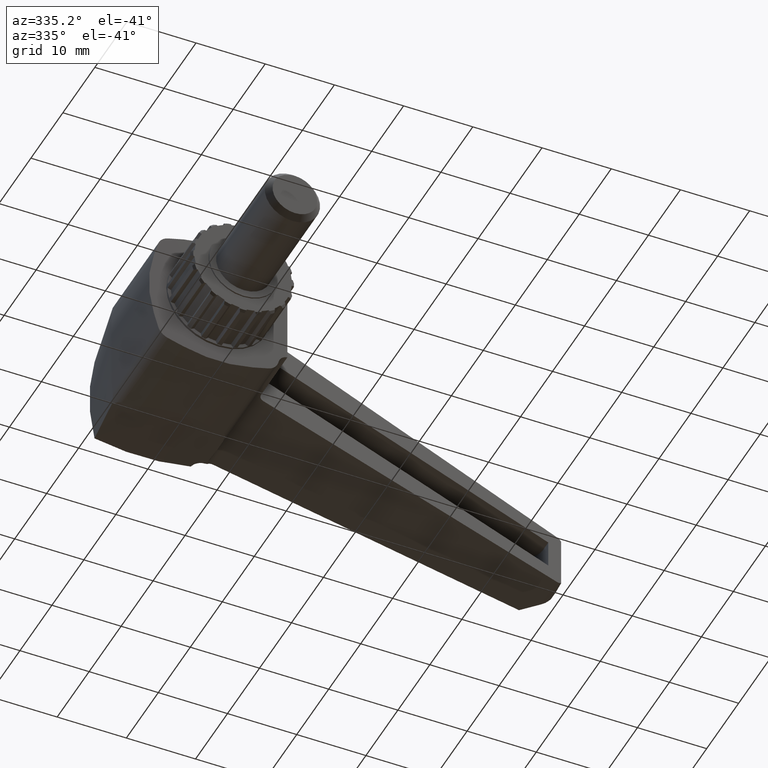
[diagram: clean part render]
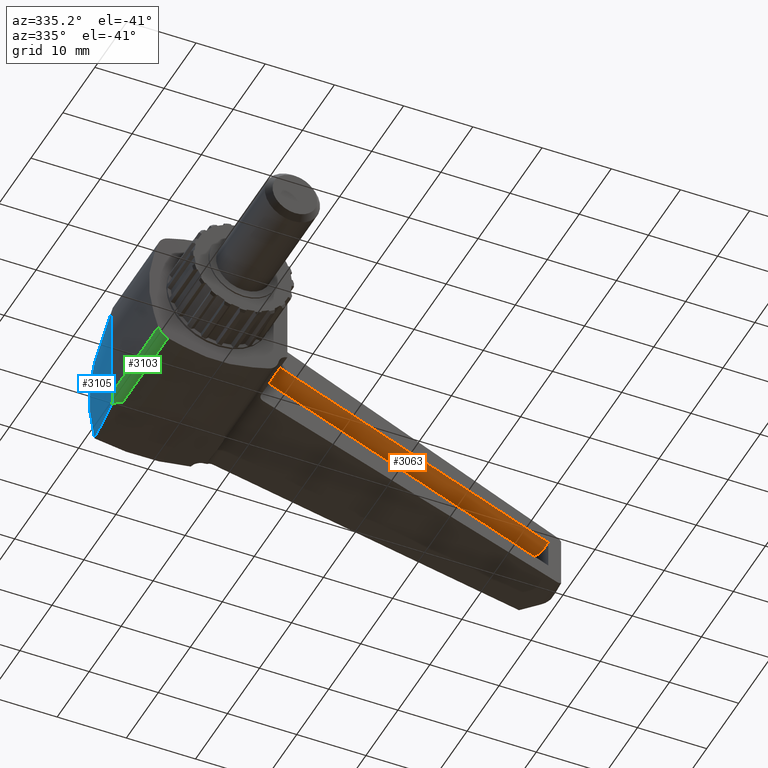
[diagram: same view with three faces highlighted in distinct colors, each labeled with its STEP entity id]
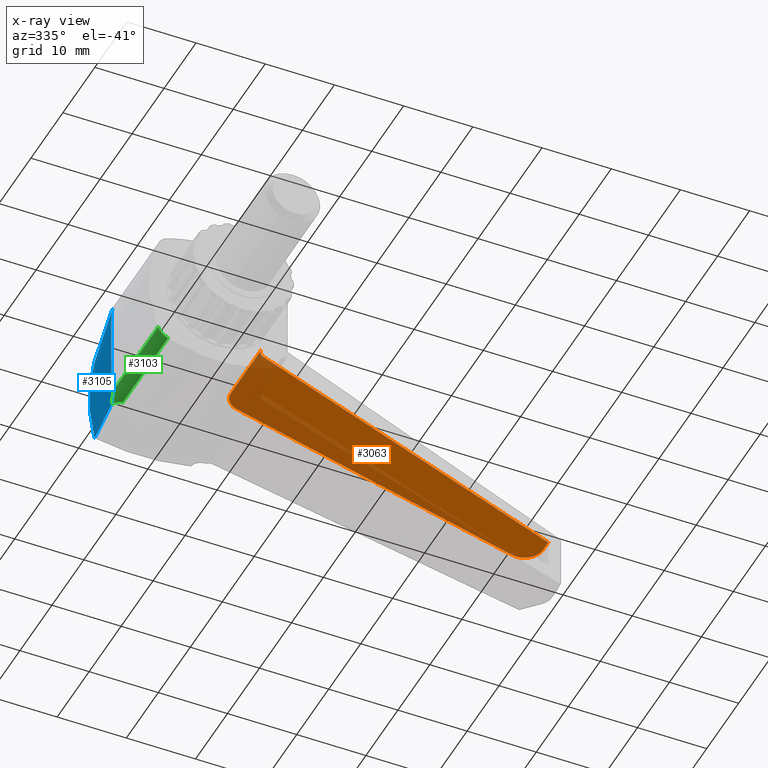
[diagram: x-ray of the same camera — body ghosted, the three highlighted faces saturated]
A machine part, auxiliary view with three faces highlighted in distinct colors.
The next image is the same camera in x-ray (body ghosted, the three faces saturated) — at least one of them is partly hidden behind the body in this view.
Their STEP definitions:

[orange] entity #3063 — the highlighted planar face has unit normal (0, 0, 1).
#391=LINE('',#5105,#632);
#392=LINE('',#5109,#633);
#393=LINE('',#5113,#634);
#394=LINE('',#5114,#635);
#632=VECTOR('',#4054,9.4853765730321);
#633=VECTOR('',#4057,46.3974669358459);
#634=VECTOR('',#4060,1.6841422785875);
#635=VECTOR('',#4061,52.7223013243301);
#778=FACE_OUTER_BOUND('',#952,.T.);
#952=EDGE_LOOP('',(#2384,#2385,#2386,#2387,#2388,#2389,#2390));
#1134=CIRCLE('',#3337,1.19999999999999);
#1135=CIRCLE('',#3338,2.66666666666666);
#1136=CIRCLE('',#3339,2.66666666666666);
#1418=VERTEX_POINT('',#5101);
#1419=VERTEX_POINT('',#5102);
#1420=VERTEX_POINT('',#5104);
#1421=VERTEX_POINT('',#5106);
#1422=VERTEX_POINT('',#5108);
#1423=VERTEX_POINT('',#5110);
#1424=VERTEX_POINT('',#5112);
#1817=EDGE_CURVE('',#1418,#1419,#1134,.T.);
#1818=EDGE_CURVE('',#1420,#1419,#391,.T.);
#1819=EDGE_CURVE('',#1421,#1420,#1135,.T.);
#1820=EDGE_CURVE('',#1422,#1421,#392,.T.);
#1821=EDGE_CURVE('',#1423,#1422,#1136,.T.);
#1822=EDGE_CURVE('',#1424,#1423,#393,.T.);
#1823=EDGE_CURVE('',#1418,#1424,#394,.T.);
#2384=ORIENTED_EDGE('',*,*,#1817,.T.);
#2385=ORIENTED_EDGE('',*,*,#1818,.F.);
#2386=ORIENTED_EDGE('',*,*,#1819,.F.);
#2387=ORIENTED_EDGE('',*,*,#1820,.F.);
#2388=ORIENTED_EDGE('',*,*,#1821,.F.);
#2389=ORIENTED_EDGE('',*,*,#1822,.F.);
#2390=ORIENTED_EDGE('',*,*,#1823,.F.);
#2918=PLANE('',#3336);
#3063=ADVANCED_FACE('',(#778),#2918,.F.);
#3336=AXIS2_PLACEMENT_3D('',#5100,#4050,#4051);
#3337=AXIS2_PLACEMENT_3D('',#5103,#4052,#4053);
#3338=AXIS2_PLACEMENT_3D('',#5107,#4055,#4056);
#3339=AXIS2_PLACEMENT_3D('',#5111,#4058,#4059);
#4050=DIRECTION('center_axis',(0.,0.,1.));
#4051=DIRECTION('ref_axis',(1.,0.,0.));
#4052=DIRECTION('center_axis',(0.,0.,1.));
#4053=DIRECTION('ref_axis',(1.,0.,0.));
#4054=DIRECTION('',(0.,-1.,0.));
#4055=DIRECTION('center_axis',(0.,0.,1.));
#4056=DIRECTION('ref_axis',(1.,0.,0.));
#4057=DIRECTION('',(-0.969837428026384,-0.243752668086258,0.));
#4058=DIRECTION('center_axis',(0.,0.,1.));
#4059=DIRECTION('ref_axis',(1.,0.,0.));
#4060=DIRECTION('',(0.,1.,0.));
#4061=DIRECTION('',(0.939692620785908,0.342020143325669,0.));
#5100=CARTESIAN_POINT('Origin',(57.6666666666667,37.0036134330854,2.));
#5101=CARTESIAN_POINT('',(10.7905758280092,17.2873820990914,2.));
#5102=CARTESIAN_POINT('',(10.002,16.2087305417334,2.));
#5103=CARTESIAN_POINT('Origin',(11.201,16.1597509541484,2.));
#5104=CARTESIAN_POINT('',(10.002,25.6941071147655,2.));
#5105=CARTESIAN_POINT('',(10.002,25.6941071147655,2.));
#5106=CARTESIAN_POINT('',(12.01865955177,28.2803402164327,2.));
#5107=CARTESIAN_POINT('Origin',(12.6686666666667,25.694107075029,2.));
#5108=CARTESIAN_POINT('',(57.01665955177,39.5898465744891,2.));
#5109=CARTESIAN_POINT('',(57.01665955177,39.5898465744891,2.));
#5110=CARTESIAN_POINT('',(60.3333333333333,37.0036134330854,2.));
#5111=CARTESIAN_POINT('Origin',(57.6666666666667,37.0036134330854,2.));
#5112=CARTESIAN_POINT('',(60.3333333333333,35.3194711544979,2.));
#5113=CARTESIAN_POINT('',(60.3333333333333,35.3194711544979,2.));
#5114=CARTESIAN_POINT('',(10.7905758280092,17.2873820990914,2.));

[blue] entity #3105 — the highlighted conical surface has half-angle 12 deg.
#35=B_SPLINE_CURVE_WITH_KNOTS('',3,(#5261,#5262,#5263,#5264),
 .UNSPECIFIED.,.F.,.F.,(4,4),(-2.26796566208621,-1.44446930168808),
 .UNSPECIFIED.);
#38=B_SPLINE_CURVE_WITH_KNOTS('',3,(#5313,#5314,#5315,#5316),
 .UNSPECIFIED.,.F.,.F.,(4,4),(-1.90518107225298,-1.08168540035583),
 .UNSPECIFIED.);
#45=B_SPLINE_CURVE_WITH_KNOTS('',3,(#5455,#5456,#5457,#5458,#5459,#5460,
#5461,#5462,#5463,#5464),.UNSPECIFIED.,.F.,.F.,(4,2,2,2,4),(-1.01407423824861,
-1.0078333576004,-0.989094278958702,-0.95161612167531,-0.84242204267243),
 .UNSPECIFIED.);
#46=B_SPLINE_CURVE_WITH_KNOTS('',3,(#5473,#5474,#5475,#5476,#5477,#5478,
#5479,#5480,#5481,#5482,#5483,#5484,#5485,#5486),.UNSPECIFIED.,.F.,.F.,
(4,2,2,2,2,2,4),(-3.65298499393777,-3.59109445330903,-3.35956152987034,
-3.12802860643165,-2.89649568299296,-2.66496275955427,-2.60307221892553),
 .UNSPECIFIED.);
#47=B_SPLINE_CURVE_WITH_KNOTS('',3,(#5491,#5492,#5493,#5494,#5495,#5496,
#5497,#5498,#5499,#5500),.UNSPECIFIED.,.F.,.F.,(4,2,2,2,4),(-1.21072282981158,
-1.10152875080888,-1.06405059352549,-1.04531151488379,-1.03907063423558),
 .UNSPECIFIED.);
#58=CONICAL_SURFACE('',#3425,33.999,12.);
#120=(
BOUNDED_CURVE()
B_SPLINE_CURVE(2,(#5469,#5470,#5471),.UNSPECIFIED.,.F.,.F.)
B_SPLINE_CURVE_WITH_KNOTS((3,3),(1.54168036904069,1.88503908409736),
 .UNSPECIFIED.)
CURVE()
GEOMETRIC_REPRESENTATION_ITEM()
RATIONAL_B_SPLINE_CURVE((1.04667868451785,1.04898350630629,1.04999957470635))
REPRESENTATION_ITEM('')
);
#121=(
BOUNDED_CURVE()
B_SPLINE_CURVE(2,(#5488,#5489,#5490),.UNSPECIFIED.,.F.,.F.)
B_SPLINE_CURVE_WITH_KNOTS((3,3),(2.4264552206484,2.76981393570507),
 .UNSPECIFIED.)
CURVE()
GEOMETRIC_REPRESENTATION_ITEM()
RATIONAL_B_SPLINE_CURVE((1.04999957470635,1.04898350630629,1.04667868451785))
REPRESENTATION_ITEM('')
);
#820=FACE_OUTER_BOUND('',#1001,.T.);
#1001=EDGE_LOOP('',(#2748,#2749,#2750,#2751,#2752,#2753,#2754,#2755));
#1161=CIRCLE('',#3378,30.3177878438847);
#1431=VERTEX_POINT('',#5169);
#1432=VERTEX_POINT('',#5171);
#1444=VERTEX_POINT('',#5250);
#1456=VERTEX_POINT('',#5312);
#1476=VERTEX_POINT('',#5454);
#1477=VERTEX_POINT('',#5468);
#1478=VERTEX_POINT('',#5472);
#1479=VERTEX_POINT('',#5487);
#1856=EDGE_CURVE('',#1431,#1432,#1161,.T.);
#1869=EDGE_CURVE('',#1431,#1444,#35,.T.);
#1886=EDGE_CURVE('',#1456,#1432,#38,.T.);
#1930=EDGE_CURVE('',#1476,#1444,#45,.T.);
#1932=EDGE_CURVE('',#1477,#1476,#120,.T.);
#1933=EDGE_CURVE('',#1478,#1477,#46,.T.);
#1934=EDGE_CURVE('',#1479,#1478,#121,.T.);
#1935=EDGE_CURVE('',#1456,#1479,#47,.T.);
#2748=ORIENTED_EDGE('',*,*,#1856,.F.);
#2749=ORIENTED_EDGE('',*,*,#1869,.T.);
#2750=ORIENTED_EDGE('',*,*,#1930,.F.);
#2751=ORIENTED_EDGE('',*,*,#1932,.F.);
#2752=ORIENTED_EDGE('',*,*,#1933,.F.);
#2753=ORIENTED_EDGE('',*,*,#1934,.F.);
#2754=ORIENTED_EDGE('',*,*,#1935,.F.);
#2755=ORIENTED_EDGE('',*,*,#1886,.T.);
#3105=ADVANCED_FACE('',(#820),#58,.T.);
#3378=AXIS2_PLACEMENT_3D('',#5172,#4145,#4146);
#3425=AXIS2_PLACEMENT_3D('',#5467,#4273,#4274);
#4145=DIRECTION('center_axis',(0.,1.,0.));
#4146=DIRECTION('ref_axis',(-1.,0.,0.));
#4273=DIRECTION('center_axis',(0.,-1.,0.));
#4274=DIRECTION('ref_axis',(1.,0.,0.));
#5169=CARTESIAN_POINT('',(-6.59453735489223,32.4141114395597,-6.58267563356202));
#5171=CARTESIAN_POINT('',(-6.59453735489223,32.4141114395597,6.58267563356201));
#5172=CARTESIAN_POINT('Origin',(23.,32.4141114395597,0.));
#5250=CARTESIAN_POINT('',(-8.13800979101938,23.6497522696908,-8.1254191001912));
#5261=CARTESIAN_POINT('Ctrl Pts',(-6.59453735489223,32.4141114395597,-6.58267563356205));
#5262=CARTESIAN_POINT('Ctrl Pts',(-7.11018896440254,29.5195514012369,-7.09808649004786));
#5263=CARTESIAN_POINT('Ctrl Pts',(-7.62808300466324,26.5764846099896,-7.61573574276851));
#5264=CARTESIAN_POINT('Ctrl Pts',(-8.13800979101937,23.6497522696908,-8.12541910019122));
#5312=CARTESIAN_POINT('',(-8.13800979101975,23.6497522696887,8.12541910019155));
#5313=CARTESIAN_POINT('Ctrl Pts',(-8.13800979101975,23.6497522696887,8.12541910019154));
#5314=CARTESIAN_POINT('Ctrl Pts',(-7.62808473143791,26.5764746991409,7.61573746871879));
#5315=CARTESIAN_POINT('Ctrl Pts',(-7.1101904586519,29.5195430134139,7.0980879835995));
#5316=CARTESIAN_POINT('Ctrl Pts',(-6.59453735489224,32.4141114395597,6.58267563356199));
#5454=CARTESIAN_POINT('',(-8.65737632033215,22.266400516384,-7.24016140570836));
#5455=CARTESIAN_POINT('Ctrl Pts',(-8.65737632033215,22.2664005163841,-7.24016140570834));
#5456=CARTESIAN_POINT('Ctrl Pts',(-8.6519035175192,22.2715406787458,-7.25919046629446));
#5457=CARTESIAN_POINT('Ctrl Pts',(-8.64623220621372,22.2778624370829,-7.27787981825127));
#5458=CARTESIAN_POINT('Ctrl Pts',(-8.62286425685562,22.3074214748676,-7.35125519654425));
#5459=CARTESIAN_POINT('Ctrl Pts',(-8.60381918587381,22.3392491793408,-7.40305346321063));
#5460=CARTESIAN_POINT('Ctrl Pts',(-8.5447400114409,22.4536348361287,-7.54758866384498));
#5461=CARTESIAN_POINT('Ctrl Pts',(-8.50271978486236,22.5551945504649,-7.62956514446385));
#5462=CARTESIAN_POINT('Ctrl Pts',(-8.35462581318088,22.9425630033874,-7.88849439366135));
#5463=CARTESIAN_POINT('Ctrl Pts',(-8.24567991329105,23.2886220719108,-8.01681880142869));
#5464=CARTESIAN_POINT('Ctrl Pts',(-8.13800979101938,23.6497522696908,-8.12541910019119));
#5467=CARTESIAN_POINT('Origin',(23.,15.0953698905215,0.));
#5468=CARTESIAN_POINT('',(-9.28915109717476,21.2976510486606,-5.04346605303281));
#5469=CARTESIAN_POINT('Ctrl Pts',(-9.28915109715843,21.2976510486953,-5.04346605308962));
#5470=CARTESIAN_POINT('Ctrl Pts',(-8.97226539335509,21.9706506023803,-6.14528489484994));
#5471=CARTESIAN_POINT('Ctrl Pts',(-8.65737632033215,22.266400516384,-7.24016140570839));
#5472=CARTESIAN_POINT('',(-9.28915109717476,21.2976510486607,5.04346605303279));
#5473=CARTESIAN_POINT('Ctrl Pts',(-9.28915109717477,21.2976510486606,5.04346605303288));
#5474=CARTESIAN_POINT('Ctrl Pts',(-9.34100477500819,21.1875245847006,4.8631696289099));
#5475=CARTESIAN_POINT('Ctrl Pts',(-9.3907089780112,21.0820816027187,4.67987067656354));
#5476=CARTESIAN_POINT('Ctrl Pts',(-9.61482888820569,20.6070730658071,3.79786834722391));
#5477=CARTESIAN_POINT('Ctrl Pts',(-9.75745732877799,20.3061287385096,3.06172084799632));
#5478=CARTESIAN_POINT('Ctrl Pts',(-9.95014259873188,19.9000600944279,1.54873581925546));
#5479=CARTESIAN_POINT('Ctrl Pts',(-10.,19.7952953698904,0.771776411462294));
#5480=CARTESIAN_POINT('Ctrl Pts',(-10.,19.7952953698904,-0.771776411462303));
#5481=CARTESIAN_POINT('Ctrl Pts',(-9.95014259873188,19.9000600944278,-1.54873581925547));
#5482=CARTESIAN_POINT('Ctrl Pts',(-9.75745732877799,20.3061287385095,-3.06172084799633));
#5483=CARTESIAN_POINT('Ctrl Pts',(-9.61482888820569,20.6070730658071,-3.79786834722391));
#5484=CARTESIAN_POINT('Ctrl Pts',(-9.3907089780112,21.0820816027188,-4.67987067656353));
#5485=CARTESIAN_POINT('Ctrl Pts',(-9.3410047750082,21.1875245847006,-4.86316962890988));
#5486=CARTESIAN_POINT('Ctrl Pts',(-9.28915109717478,21.2976510486605,-5.04346605303286));
#5487=CARTESIAN_POINT('',(-8.65737632033215,22.2664005163841,7.24016140570836));
#5488=CARTESIAN_POINT('Ctrl Pts',(-8.65737632033214,22.266400516384,7.24016140570842));
#5489=CARTESIAN_POINT('Ctrl Pts',(-8.97226539335508,21.9706506023803,6.14528489484997));
#5490=CARTESIAN_POINT('Ctrl Pts',(-9.28915109715842,21.2976510486953,5.04346605308965));
#5491=CARTESIAN_POINT('Ctrl Pts',(-8.13800979101991,23.649752269689,8.12541910019066));
#5492=CARTESIAN_POINT('Ctrl Pts',(-8.24567991329141,23.2886220719096,8.01681880142825));
#5493=CARTESIAN_POINT('Ctrl Pts',(-8.35462581318106,22.9425630033869,7.88849439366104));
#5494=CARTESIAN_POINT('Ctrl Pts',(-8.50271978486236,22.5551945504649,7.62956514446386));
#5495=CARTESIAN_POINT('Ctrl Pts',(-8.54474001144089,22.4536348361287,7.54758866384498));
#5496=CARTESIAN_POINT('Ctrl Pts',(-8.6038191858738,22.3392491793408,7.40305346321063));
#5497=CARTESIAN_POINT('Ctrl Pts',(-8.62286425685562,22.3074214748676,7.35125519654425));
#5498=CARTESIAN_POINT('Ctrl Pts',(-8.64623220621372,22.2778624370829,7.27787981825128));
#5499=CARTESIAN_POINT('Ctrl Pts',(-8.6519035175192,22.2715406787458,7.25919046629448));
#5500=CARTESIAN_POINT('Ctrl Pts',(-8.65737632033215,22.2664005163841,7.24016140570837));

[green] entity #3103 — the highlighted cylindrical surface (edge-blend (fillet) strip) has radius 2.07 mm, axis along (0, 1, 0).
#34=B_SPLINE_CURVE_WITH_KNOTS('',3,(#5251,#5252,#5253,#5254,#5255,#5256,
#5257,#5258,#5259,#5260),.UNSPECIFIED.,.F.,.F.,(4,2,2,2,4),(-1.21498281958569,
-1.10152875080887,-1.06405059352548,-1.04531151488379,-1.03907063423557),
 .UNSPECIFIED.);
#45=B_SPLINE_CURVE_WITH_KNOTS('',3,(#5455,#5456,#5457,#5458,#5459,#5460,
#5461,#5462,#5463,#5464),.UNSPECIFIED.,.F.,.F.,(4,2,2,2,4),(-1.01407423824861,
-1.0078333576004,-0.989094278958702,-0.95161612167531,-0.84242204267243),
 .UNSPECIFIED.);
#177=CYLINDRICAL_SURFACE('',#3423,2.07);
#432=LINE('',#5449,#673);
#435=LINE('',#5465,#676);
#673=VECTOR('',#4263,14.2240588453988);
#676=VECTOR('',#4270,14.266400516384);
#818=FACE_OUTER_BOUND('',#999,.T.);
#999=EDGE_LOOP('',(#2739,#2740,#2741,#2742,#2743));
#1038=CIRCLE('',#3145,2.07);
#1189=VERTEX_POINT('',#4379);
#1190=VERTEX_POINT('',#4381);
#1443=VERTEX_POINT('',#5246);
#1444=VERTEX_POINT('',#5250);
#1476=VERTEX_POINT('',#5454);
#1501=EDGE_CURVE('',#1189,#1190,#1038,.F.);
#1868=EDGE_CURVE('',#1444,#1443,#34,.T.);
#1927=EDGE_CURVE('',#1443,#1190,#432,.T.);
#1930=EDGE_CURVE('',#1476,#1444,#45,.T.);
#1931=EDGE_CURVE('',#1476,#1189,#435,.T.);
#2739=ORIENTED_EDGE('',*,*,#1930,.T.);
#2740=ORIENTED_EDGE('',*,*,#1868,.T.);
#2741=ORIENTED_EDGE('',*,*,#1927,.T.);
#2742=ORIENTED_EDGE('',*,*,#1501,.F.);
#2743=ORIENTED_EDGE('',*,*,#1931,.F.);
#3103=ADVANCED_FACE('',(#818),#177,.T.);
#3145=AXIS2_PLACEMENT_3D('',#4382,#3488,#3489);
#3423=AXIS2_PLACEMENT_3D('',#5453,#4268,#4269);
#3488=DIRECTION('center_axis',(0.,1.,0.));
#3489=DIRECTION('ref_axis',(-1.,0.,0.));
#4263=DIRECTION('',(0.,-1.,0.));
#4268=DIRECTION('center_axis',(0.,1.,0.));
#4269=DIRECTION('ref_axis',(0.,0.,-1.));
#4270=DIRECTION('',(0.,-1.,0.));
#4379=CARTESIAN_POINT('',(-8.65737632033215,8.,-7.24016140570836));
#4381=CARTESIAN_POINT('',(-7.24016140570836,8.,-8.65737632033215));
#4382=CARTESIAN_POINT('Origin',(-6.66801694658914,8.,-6.66801694658914));
#5246=CARTESIAN_POINT('',(-7.24016140570836,22.2240588453988,-8.65737632033215));
#5250=CARTESIAN_POINT('',(-8.13800979101938,23.6497522696908,-8.1254191001912));
#5251=CARTESIAN_POINT('Ctrl Pts',(-8.13800979101934,23.6497522696908,-8.12541910019123));
#5252=CARTESIAN_POINT('Ctrl Pts',(-8.02727962719204,23.2731716078702,-8.23710587661489));
#5253=CARTESIAN_POINT('Ctrl Pts',(-7.89601480776072,22.9114721709385,-8.35032453012337));
#5254=CARTESIAN_POINT('Ctrl Pts',(-7.62956514446385,22.5128528794798,-8.50271978486236));
#5255=CARTESIAN_POINT('Ctrl Pts',(-7.54758866384498,22.4112931651435,-8.54474001144089));
#5256=CARTESIAN_POINT('Ctrl Pts',(-7.40305346321064,22.2969075083556,-8.6038191858738));
#5257=CARTESIAN_POINT('Ctrl Pts',(-7.35125519654425,22.2650798038825,-8.62286425685562));
#5258=CARTESIAN_POINT('Ctrl Pts',(-7.27787981825126,22.2355207660978,-8.64623220621372));
#5259=CARTESIAN_POINT('Ctrl Pts',(-7.25919046629445,22.2291990077607,-8.65190351751921));
#5260=CARTESIAN_POINT('Ctrl Pts',(-7.24016140570833,22.2240588453989,-8.65737632033216));
#5449=CARTESIAN_POINT('',(-7.24016140570836,22.2240588453988,-8.65737632033215));
#5453=CARTESIAN_POINT('Origin',(-6.66801694658914,43.1,-6.66801694658914));
#5454=CARTESIAN_POINT('',(-8.65737632033215,22.266400516384,-7.24016140570836));
#5455=CARTESIAN_POINT('Ctrl Pts',(-8.65737632033215,22.2664005163841,-7.24016140570834));
#5456=CARTESIAN_POINT('Ctrl Pts',(-8.6519035175192,22.2715406787458,-7.25919046629446));
#5457=CARTESIAN_POINT('Ctrl Pts',(-8.64623220621372,22.2778624370829,-7.27787981825127));
#5458=CARTESIAN_POINT('Ctrl Pts',(-8.62286425685562,22.3074214748676,-7.35125519654425));
#5459=CARTESIAN_POINT('Ctrl Pts',(-8.60381918587381,22.3392491793408,-7.40305346321063));
#5460=CARTESIAN_POINT('Ctrl Pts',(-8.5447400114409,22.4536348361287,-7.54758866384498));
#5461=CARTESIAN_POINT('Ctrl Pts',(-8.50271978486236,22.5551945504649,-7.62956514446385));
#5462=CARTESIAN_POINT('Ctrl Pts',(-8.35462581318088,22.9425630033874,-7.88849439366135));
#5463=CARTESIAN_POINT('Ctrl Pts',(-8.24567991329105,23.2886220719108,-8.01681880142869));
#5464=CARTESIAN_POINT('Ctrl Pts',(-8.13800979101938,23.6497522696908,-8.12541910019119));
#5465=CARTESIAN_POINT('',(-8.65737632033215,22.266400516384,-7.24016140570836));